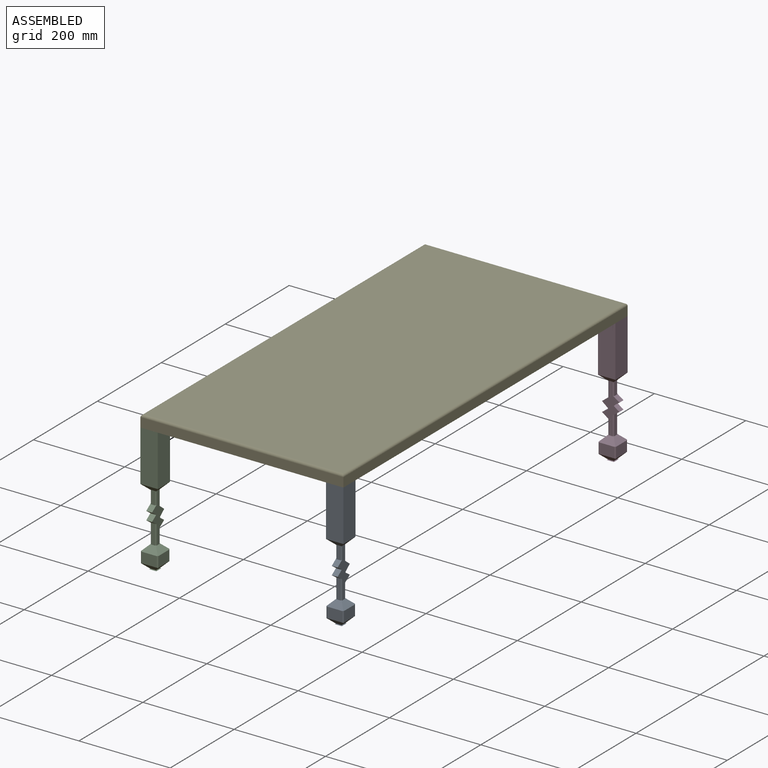
[diagram: assembled view]
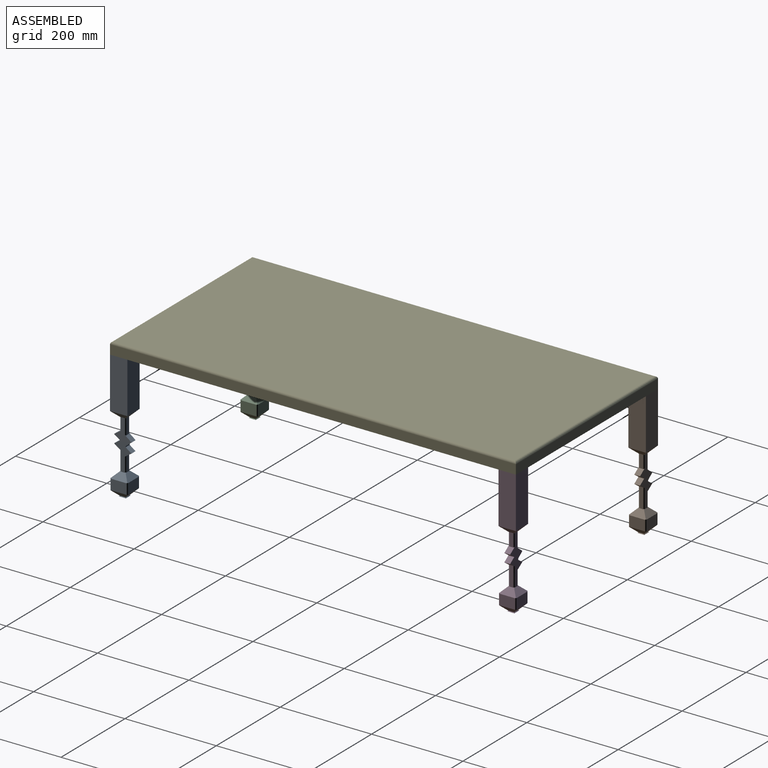
[diagram: assembled view, second angle]
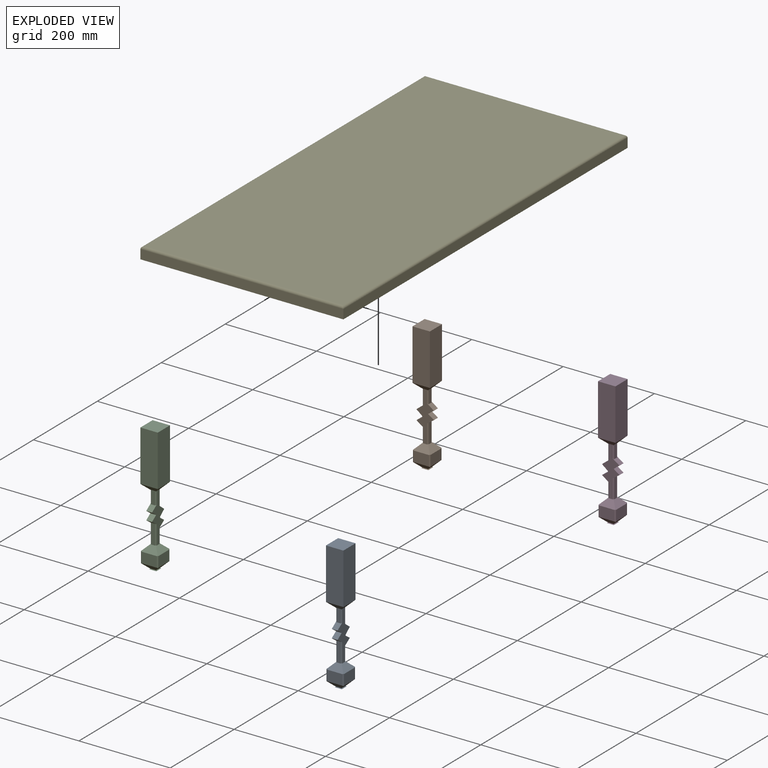
[diagram: exploded view]
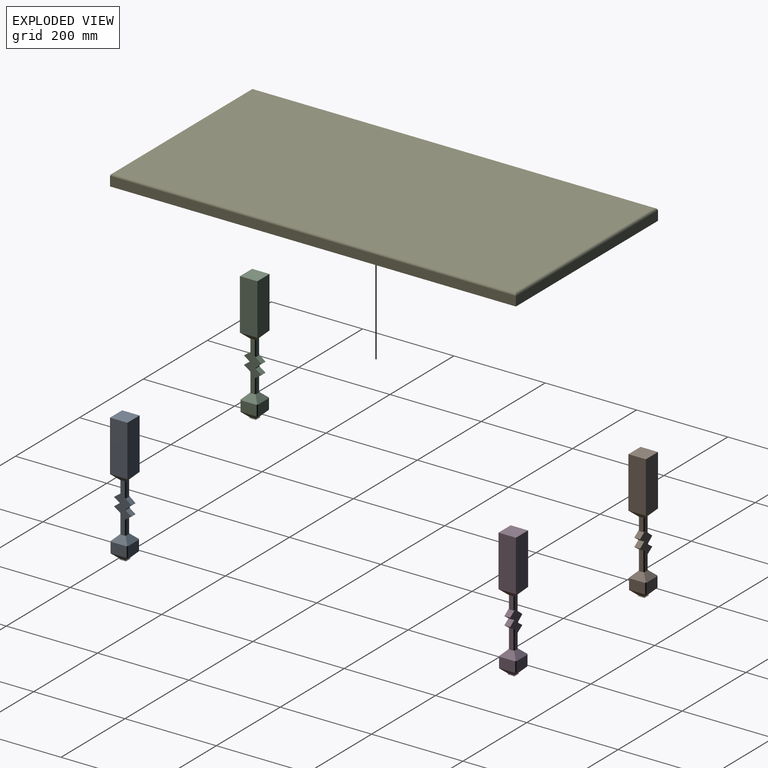
[diagram: exploded view, second angle]
ASSEMBLY  parts=5 mates=4
PART A: 58 faces, bbox 38.1x38.1x281.9 mm
  f0: plane 12.7x0.76mm, normal (-1,0,0), area 9.7mm2, adj f4,f28,f36,f39
  f1: plane 28.45x7.62mm, normal (-1,0,0), area 216.8mm2, adj f34,f40,f46,f47
  f2: plane 43.18x7.62mm, normal (-1,0,0), area 329mm2, adj f33,f37,f48,f49
  f3: plane 111.76x38.1mm, normal (-1,0,0), area 4258.1mm2, adj f18,f19,f21,f34
  f4: plane 107.95x38.1mm, normal (0,-1,0), area 1498.6mm2, adj f0,f5,f6,f9,f10,f11,f13,f14
  f5: plane 12.7x0.25mm, normal (1,0,0), area 3.2mm2, adj f4,f10,f11,f28
  f6: plane 12.7x0.25mm, normal (1,0,0), area 3.2mm2, adj f4,f13,f14,f28
  f7: plane 33.02x22.86mm, normal (0,-1,0), area 754.8mm2, adj f25,f32,f56,f57
  f8: plane 33.02x7.62mm, normal (1,0,0), area 251.6mm2, adj f14,f27,f51,f53
  f9: plane 12.7x2.54mm, normal (1,0,0), area 32.3mm2, adj f4,f10,f13,f28
  f10: plane 12.7x12.7mm, normal (0.62,0,0.78), area 206.6mm2, adj f4,f5,f9,f28
  f11: plane 15.24x12.7mm, normal (0.62,0,-0.79), area 208.1mm2, adj f4,f5,f12,f28,f50,f52
  f12: plane 34.29x7.62mm, normal (1,0,0), area 261.3mm2, adj f11,f26,f50,f52
  f13: plane 12.7x12.7mm, normal (0.57,0,-0.82), area 196mm2, adj f4,f6,f9,f28
  f14: plane 15.24x12.7mm, normal (0.57,0,0.82), area 199.3mm2, adj f4,f6,f8,f28,f51,f53
  f15: plane 33.02x22.86mm, normal (0,1,0), area 754.8mm2, adj f22,f30,f54,f55
  f16: plane 111.76x38.1mm, normal (1,0,0), area 4258.1mm2, adj f18,f19,f21,f26
  f17: plane 33.02x22.86mm, normal (1,0,0), area 754.8mm2, adj f24,f27,f54,f57
  f18: plane 111.76x38.1mm, normal (0,1,0), area 4258.1mm2, adj f3,f16,f21,f29
  f19: plane 111.76x38.1mm, normal (0,-1,0), area 4258.1mm2, adj f3,f16,f21,f31
  f20: plane 33.02x22.86mm, normal (-1,0,0), area 754.8mm2, adj f23,f33,f55,f56
  f21: plane 38.1x38.1mm, normal (0,0,-1), area 1451.6mm2, adj f3,f16,f18,f19
  f22: plane 36.61x12.7mm, normal (0,0.71,0.71), area 454.2mm2, adj f15,f23,f24,f42,f54,f55
  f23: plane 36.61x12.7mm, normal (-0.71,0,0.71), area 454.2mm2, adj f20,f22,f25,f45,f55,f56
  f24: plane 36.61x12.7mm, normal (0.71,0,0.71), area 454.2mm2, adj f17,f22,f25,f43,f54,f57
  f25: plane 36.61x12.7mm, normal (0,-0.71,0.71), area 454.2mm2, adj f7,f23,f24,f44,f56,f57
  f26: plane 38.1x13.44mm, normal (0.71,0,0.71), area 458.2mm2, adj f12,f16,f29,f31,f50,f52
  f27: plane 36.61x13.44mm, normal (0.71,0,-0.71), area 456.2mm2, adj f8,f17,f30,f32,f51,f53,f54,f57
  f28: plane 107.95x38.1mm, normal (0,1,0), area 1498.6mm2, adj f0,f5,f6,f9,f10,f11,f13,f14
  f29: plane 38.1x13.44mm, normal (0,0.71,0.71), area 458.2mm2, adj f18,f26,f28,f34,f47,f52
  f30: plane 36.61x13.44mm, normal (0,0.71,-0.71), area 456.2mm2, adj f15,f27,f28,f33,f49,f53,f54,f55
  f31: plane 38.1x13.44mm, normal (0,-0.71,0.71), area 458.2mm2, adj f4,f19,f26,f34,f46,f50
  f32: plane 36.61x13.44mm, normal (0,-0.71,-0.71), area 456.2mm2, adj f4,f7,f27,f33,f48,f51,f56,f57
  f33: plane 36.61x13.44mm, normal (-0.71,0,-0.71), area 456.2mm2, adj f2,f20,f30,f32,f48,f49,f55,f56
  f34: plane 38.1x13.44mm, normal (-0.71,0,0.71), area 458.2mm2, adj f1,f3,f29,f31,f46,f47
  f35: plane 12.7x0.03mm, normal (-1,0,0), area 0.3mm2, adj f4,f28,f36,f37
  f36: plane 12.7x12.7mm, normal (-0.57,0,-0.82), area 196.9mm2, adj f0,f4,f28,f35
  f37: plane 15.24x12.7mm, normal (-0.57,0,0.82), area 200.1mm2, adj f2,f4,f28,f35,f48,f49
  f38: plane 12.7x0.03mm, normal (-1,0,0), area 0.3mm2, adj f4,f28,f39,f40
  f39: plane 12.7x12.7mm, normal (-0.57,0,0.82), area 196.7mm2, adj f0,f4,f28,f38
  f40: plane 15.24x12.7mm, normal (-0.57,0,-0.82), area 200.3mm2, adj f1,f4,f28,f38,f46,f47
  f41: plane 15.24x15.24mm, normal (0,0,1), area 232.3mm2, adj f42,f43,f44,f45
  f42: plane 15.24x1.27mm, normal (0,0.71,-0.71), area 25.1mm2, adj f22,f41,f43,f45
  f43: plane 15.24x1.27mm, normal (0.71,0,-0.71), area 25.1mm2, adj f24,f41,f42,f44
  f44: plane 15.24x1.27mm, normal (0,-0.71,-0.71), area 25.1mm2, adj f25,f41,f43,f45
  f45: plane 15.24x1.27mm, normal (-0.71,0,-0.71), area 25.1mm2, adj f23,f41,f42,f44
  f46: cylinder r=2.54mm len=28.45mm, axis (0,0,-1), area 109.9mm2, adj f1,f4,f31,f34,f40
  f47: cylinder r=2.54mm len=28.45mm, axis (0,0,-1), area 109.9mm2, adj f1,f28,f29,f34,f40
  f48: cylinder r=2.54mm len=43.18mm, axis (0,0,-1), area 168.7mm2, adj f2,f4,f32,f33,f37
  f49: cylinder r=2.54mm len=43.18mm, axis (0,0,-1), area 168.7mm2, adj f2,f28,f30,f33,f37
  f50: cylinder r=2.54mm len=34.29mm, axis (0,0,-1), area 132.9mm2, adj f4,f11,f12,f26,f31
  f51: cylinder r=2.54mm len=33.02mm, axis (0,0,-1), area 128.2mm2, adj f4,f8,f14,f27,f32
  f52: cylinder r=2.54mm len=34.29mm, axis (0,0,-1), area 132.9mm2, adj f11,f12,f26,f28,f29
  f53: cylinder r=2.54mm len=33.02mm, axis (0,0,-1), area 128.2mm2, adj f8,f14,f27,f28,f30
  f54: cylinder r=2.54mm len=24.35mm, axis (0,0,-1), area 93.2mm2, adj f15,f17,f22,f24,f27,f30
  f55: cylinder r=2.54mm len=24.35mm, axis (0,0,1), area 93.2mm2, adj f15,f20,f22,f23,f30,f33
  f56: cylinder r=2.54mm len=24.35mm, axis (0,0,-1), area 93.2mm2, adj f7,f20,f23,f25,f32,f33
  f57: cylinder r=2.54mm len=24.35mm, axis (0,0,1), area 93.2mm2, adj f7,f17,f24,f25,f27,f32
PART B: same geometry as A
PART C: same geometry as A
PART D: same geometry as A
PART E: 10 faces, bbox 889x444.5x25.4 mm
  f0: plane 889x20.32mm, normal (0,1,0), area 18064.5mm2, adj f1,f3,f5,f6
  f1: plane 444.5x20.32mm, normal (-1,0,0), area 9032.2mm2, adj f0,f2,f5,f7
  f2: plane 889x20.32mm, normal (0,-1,0), area 18064.5mm2, adj f1,f3,f5,f9
  f3: plane 444.5x20.32mm, normal (1,0,0), area 9032.2mm2, adj f0,f2,f5,f8
  f4: plane 878.84x434.34mm, normal (0,0,1), area 381715.4mm2, adj f6,f7,f8,f9
  f5: plane 889x444.5mm, normal (0,0,-1), area 395160.5mm2, adj f0,f1,f2,f3
  f6: cylinder r=5.08mm len=889mm, axis (1,0,0), area 7064.4mm2, adj f0,f4,f7,f8
  f7: cylinder r=5.08mm len=444.5mm, axis (0,1,0), area 3517.5mm2, adj f1,f4,f6,f9
  f8: cylinder r=5.08mm len=444.5mm, axis (0,-1,0), area 3517.5mm2, adj f3,f4,f6,f9
  f9: cylinder r=5.08mm len=889mm, axis (-1,0,0), area 7064.4mm2, adj f2,f4,f7,f8
PLACE A rot(axis=(0.71,0.71,0),180deg) t=(266.6,-968.29,235.37)mm
PLACE B rot(axis=(0,-1,0),180deg) t=(-135.68,-124.69,235.37)mm
PLACE C rot(axis=(0.71,0.71,0),180deg) t=(-139.8,-968.29,235.37)mm
PLACE D rot(axis=(0,1,0),180deg) t=(270.72,-124.69,235.37)mm
PLACE E rot(axis=(0,0,-1),90deg) t=(31.23,-448.04,235.37)mm
MATE fastened D.f21 <-> E.f5  axis (0,0,1) through (291.36,-99.93,235.37)mm
MATE fastened C.f21 <-> E.f5  axis (0,0,1) through (-153.14,-988.93,235.37)mm
MATE fastened E.f5 <-> A.f21  axis (0,0,-1) through (291.36,-988.93,235.37)mm
MATE fastened E.f5 <-> B.f21  axis (0,0,-1) through (-153.14,-99.93,235.37)mm
